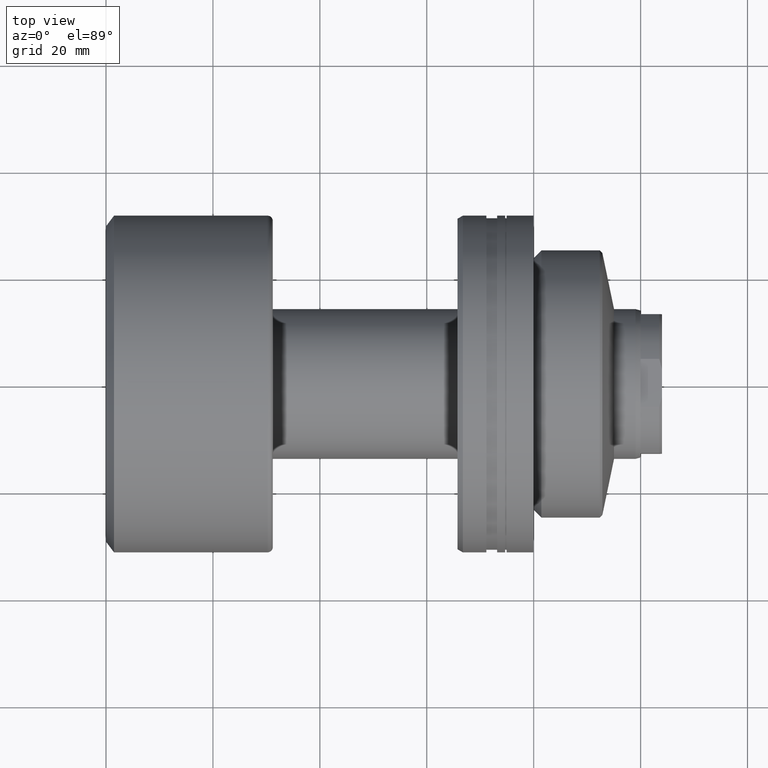
[diagram: clean part render]
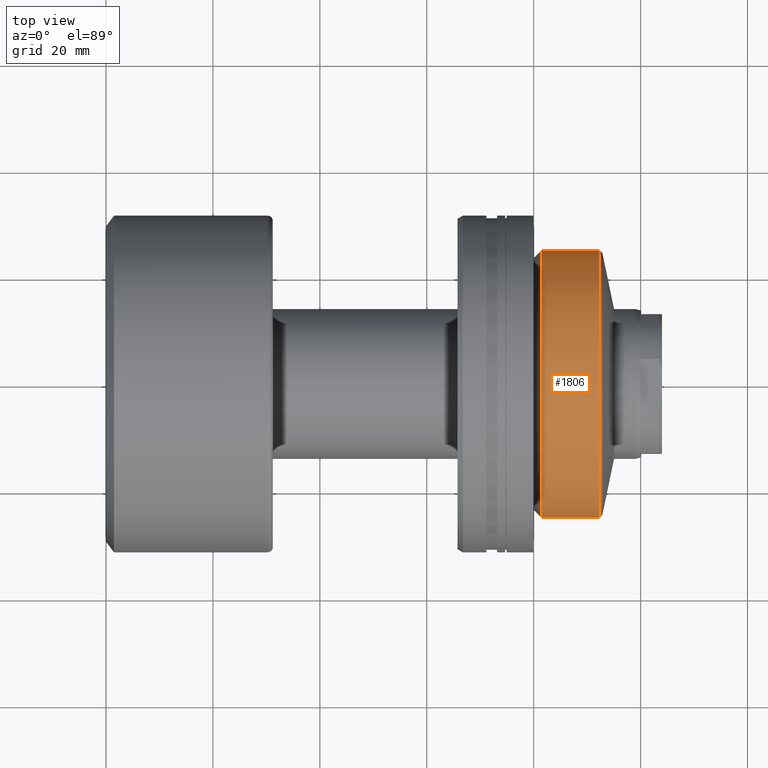
[diagram: same view with one face highlighted and labeled with its STEP entity id]
A machine part, top view. The second image highlights one B-rep face of the part: STEP entity #1806.
In plain terms, the highlighted cylindrical surface (partial cylindrical patch) has radius 25 mm, axis along (1, 0, 0).
Its self-contained STEP definition (entity closure, byte-faithful):
#3 = CARTESIAN_POINT ( 'NONE',  ( -16.50000000000068212, -25.00000000000000000, 3.061616997868386198E-15 ) ) ;
#29 = AXIS2_PLACEMENT_3D ( 'NONE', #938, #785, #945 ) ;
#37 = CARTESIAN_POINT ( 'NONE',  ( -5.600000000000691536, -25.00000000000000000, 3.061616997868388565E-15 ) ) ;
#160 = DIRECTION ( 'NONE',  ( -1.942890293094020001E-15, 1.000000000000000000, 0.000000000000000000 ) ) ;
#209 = VERTEX_POINT ( 'NONE', #3 ) ;
#291 = ORIENTED_EDGE ( 'NONE', *, *, #1289, .T. ) ;
#311 = EDGE_CURVE ( 'NONE', #433, #209, #511, .T. ) ;
#329 = EDGE_CURVE ( 'NONE', #433, #516, #1480, .T. ) ;
#433 = VERTEX_POINT ( 'NONE', #880 ) ;
#511 = CIRCLE ( 'NONE', #29, 25.00000000000002842 ) ;
#516 = VERTEX_POINT ( 'NONE', #1796 ) ;
#575 = VERTEX_POINT ( 'NONE', #37 ) ;
#589 = DIRECTION ( 'NONE',  ( 1.000000000000000000, 1.931394410353556421E-15, -0.000000000000000000 ) ) ;
#598 = DIRECTION ( 'NONE',  ( 1.000000000000000000, 1.931394410353556421E-15, -0.000000000000000000 ) ) ;
#785 = DIRECTION ( 'NONE',  ( 1.000000000000000000, 1.931394410353556421E-15, -0.000000000000000000 ) ) ;
#793 = ORIENTED_EDGE ( 'NONE', *, *, #1586, .F. ) ;
#880 = CARTESIAN_POINT ( 'NONE',  ( -16.50000000000077804, 25.00000000000005684, 0.000000000000000000 ) ) ;
#938 = CARTESIAN_POINT ( 'NONE',  ( -16.50000000000072831, 2.661465894658677424E-14, 0.000000000000000000 ) ) ;
#941 = DIRECTION ( 'NONE',  ( -1.942890293094020790E-15, 1.000000000000000000, 0.000000000000000000 ) ) ;
#945 = DIRECTION ( 'NONE',  ( -1.942890293094021579E-15, 1.000000000000000000, 0.000000000000000000 ) ) ;
#1083 = ORIENTED_EDGE ( 'NONE', *, *, #311, .T. ) ;
#1092 = CARTESIAN_POINT ( 'NONE',  ( -30.28002276692732408, 0.000000000000000000, 0.000000000000000000 ) ) ;
#1121 = CIRCLE ( 'NONE', #1327, 25.00000000000004974 ) ;
#1197 = CARTESIAN_POINT ( 'NONE',  ( -5.600000000000739497, 4.766685801944051580E-14, 0.000000000000000000 ) ) ;
#1278 = CYLINDRICAL_SURFACE ( 'NONE', #2232, 25.00000000000003908 ) ;
#1289 = EDGE_CURVE ( 'NONE', #209, #575, #1478, .T. ) ;
#1327 = AXIS2_PLACEMENT_3D ( 'NONE', #1197, #2103, #160 ) ;
#1478 = LINE ( 'NONE', #2189, #1871 ) ;
#1480 = LINE ( 'NONE', #2180, #2002 ) ;
#1586 = EDGE_CURVE ( 'NONE', #516, #575, #1121, .T. ) ;
#1591 = EDGE_LOOP ( 'NONE', ( #1083, #291, #793, #2166 ) ) ;
#1796 = CARTESIAN_POINT ( 'NONE',  ( -5.600000000000788347, 25.00000000000009948, 0.000000000000000000 ) ) ;
#1806 = ADVANCED_FACE ( 'NONE', ( #2139 ), #1278, .T. ) ;
#1871 = VECTOR ( 'NONE', #598, 1000.000000000000000 ) ;
#1874 = DIRECTION ( 'NONE',  ( 1.000000000000000000, 1.931394410353556421E-15, -0.000000000000000000 ) ) ;
#2002 = VECTOR ( 'NONE', #589, 1000.000000000000000 ) ;
#2103 = DIRECTION ( 'NONE',  ( 1.000000000000000000, 1.931394410353556421E-15, -0.000000000000000000 ) ) ;
#2139 = FACE_OUTER_BOUND ( 'NONE', #1591, .T. ) ;
#2166 = ORIENTED_EDGE ( 'NONE', *, *, #329, .F. ) ;
#2180 = CARTESIAN_POINT ( 'NONE',  ( -30.28002276692737382, 25.00000000000003908, 0.000000000000000000 ) ) ;
#2189 = CARTESIAN_POINT ( 'NONE',  ( -30.28002276692727435, -25.00000000000003908, 3.061616997868387776E-15 ) ) ;
#2232 = AXIS2_PLACEMENT_3D ( 'NONE', #1092, #1874, #941 ) ;